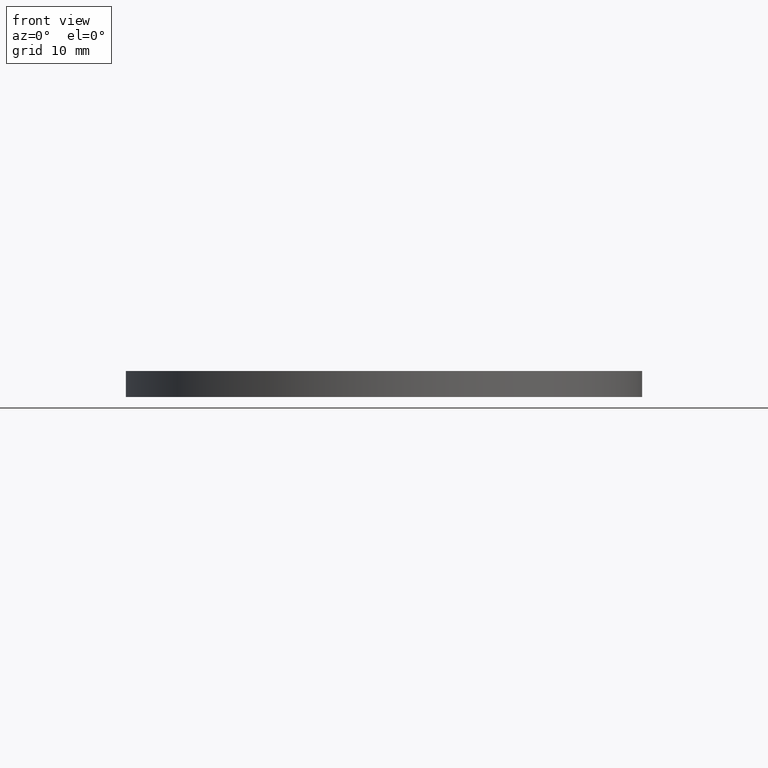
[diagram: clean part render]
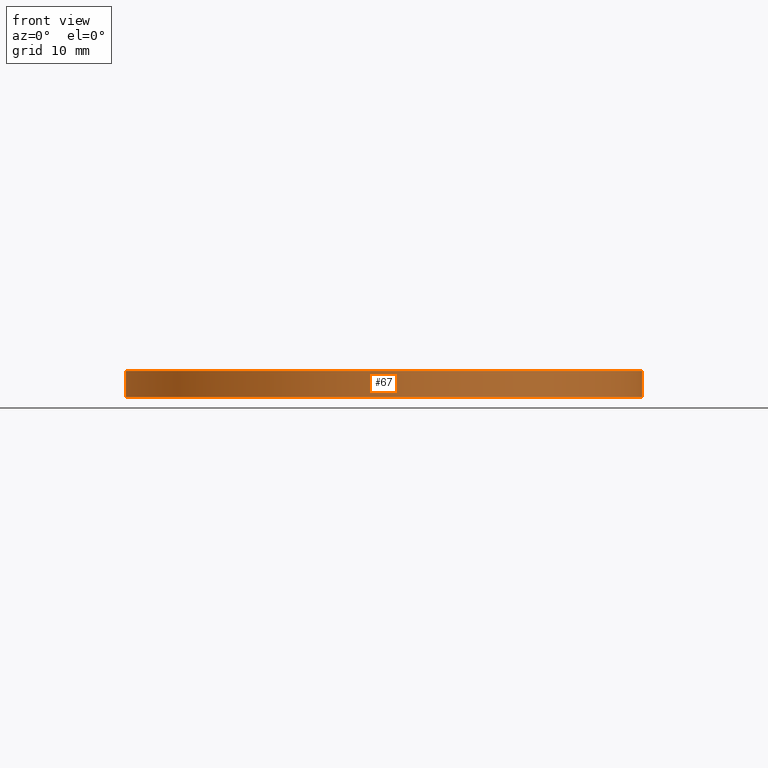
[diagram: same view with one face highlighted and labeled with its STEP entity id]
A machine part, front view. The second image highlights one B-rep face of the part: STEP entity #67.
In plain terms, the highlighted cylindrical surface (bore or boss wall) has radius 30 mm, axis along (0, 0, -1).
Its self-contained STEP definition (entity closure, byte-faithful):
#18=FACE_OUTER_BOUND('',#23,.T.);
#23=EDGE_LOOP('',(#47,#48,#49,#50));
#29=LINE('',#131,#31);
#31=VECTOR('',#110,30.);
#33=CIRCLE('',#96,30.);
#34=CIRCLE('',#97,30.);
#37=VERTEX_POINT('',#128);
#38=VERTEX_POINT('',#130);
#41=EDGE_CURVE('',#37,#37,#33,.T.);
#42=EDGE_CURVE('',#37,#38,#29,.T.);
#43=EDGE_CURVE('',#38,#38,#34,.T.);
#47=ORIENTED_EDGE('',*,*,#41,.F.);
#48=ORIENTED_EDGE('',*,*,#42,.T.);
#49=ORIENTED_EDGE('',*,*,#43,.T.);
#50=ORIENTED_EDGE('',*,*,#42,.F.);
#59=CYLINDRICAL_SURFACE('',#95,30.);
#67=ADVANCED_FACE('',(#18),#59,.T.);
#95=AXIS2_PLACEMENT_3D('',#127,#106,#107);
#96=AXIS2_PLACEMENT_3D('',#129,#108,#109);
#97=AXIS2_PLACEMENT_3D('',#132,#111,#112);
#106=DIRECTION('center_axis',(0.,0.,-1.));
#107=DIRECTION('ref_axis',(0.,-1.,0.));
#108=DIRECTION('center_axis',(0.,0.,-1.));
#109=DIRECTION('ref_axis',(0.,-1.,0.));
#110=DIRECTION('',(0.,0.,1.));
#111=DIRECTION('center_axis',(0.,0.,-1.));
#112=DIRECTION('ref_axis',(0.,-1.,0.));
#127=CARTESIAN_POINT('Origin',(0.,4.286264E-16,7.));
#128=CARTESIAN_POINT('',(0.,30.,-1.83697E-15));
#129=CARTESIAN_POINT('Origin',(0.,0.,0.));
#130=CARTESIAN_POINT('',(0.,30.,3.));
#131=CARTESIAN_POINT('',(3.67394039744206E-15,30.,7.));
#132=CARTESIAN_POINT('Origin',(0.,4.286264E-16,3.));